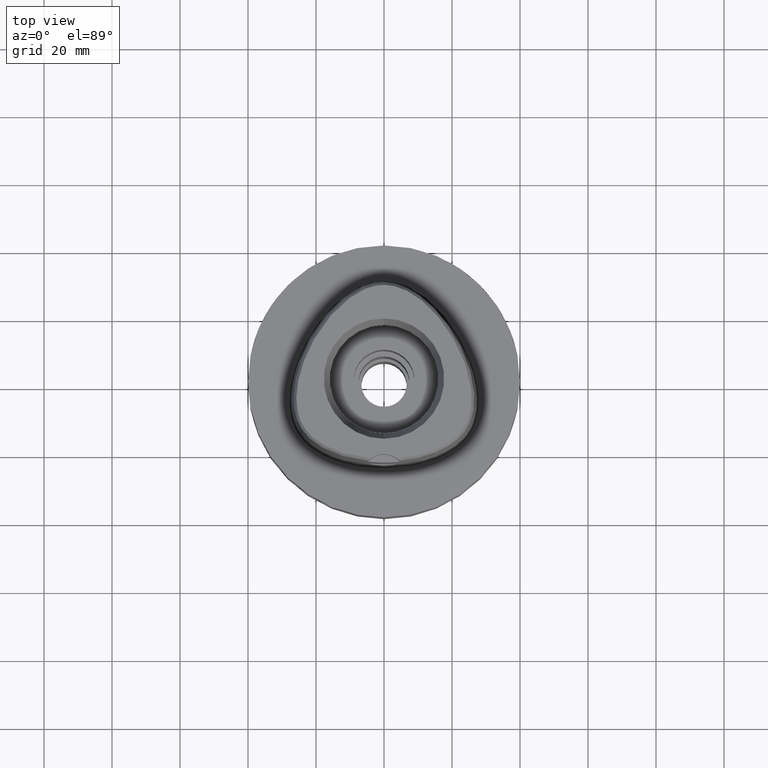
[diagram: clean part render]
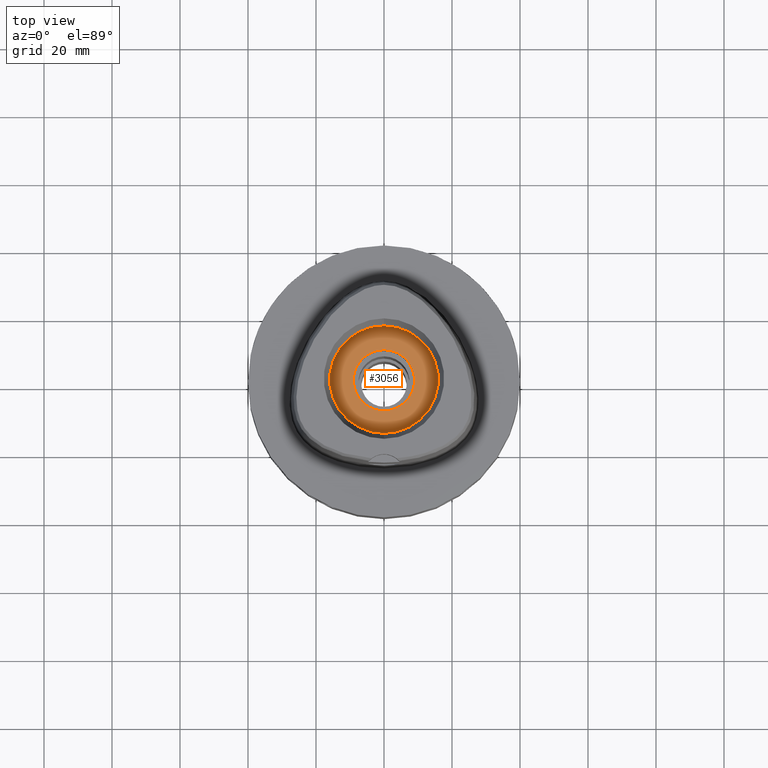
[diagram: same view with one face highlighted and labeled with its STEP entity id]
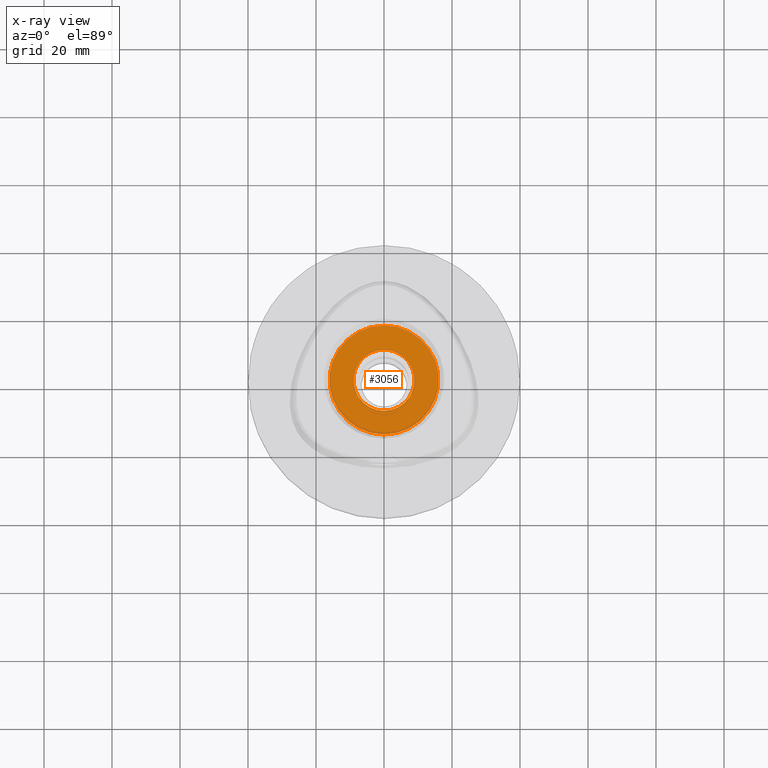
[diagram: x-ray of the same camera — body ghosted, the highlighted face saturated]
A machine part, top view. The second image highlights one B-rep face of the part: STEP entity #3056.
The next image is the same camera in x-ray: the body ghosted, the highlighted face saturated — about 0% of this face is hidden behind the body in this view.
In plain terms, the highlighted planar face has unit normal (0, 0, -1).
Its self-contained STEP definition (entity closure, byte-faithful):
#119 = CARTESIAN_POINT ( 'NONE',  ( 0.0000000000000000000, 9.000000000000000000, 20.00000000000000000 ) ) ;
#170 = FACE_BOUND ( 'NONE', #788, .T. ) ;
#448 = EDGE_CURVE ( 'NONE', #1340, #599, #2713, .T. ) ;
#470 = DIRECTION ( 'NONE',  ( 0.0000000000000000000, -1.000000000000000000, 0.0000000000000000000 ) ) ;
#509 = DIRECTION ( 'NONE',  ( 0.0000000000000000000, -1.000000000000000000, 0.0000000000000000000 ) ) ;
#531 = DIRECTION ( 'NONE',  ( 0.0000000000000000000, 1.000000000000000000, 0.0000000000000000000 ) ) ;
#599 = VERTEX_POINT ( 'NONE', #4890 ) ;
#788 = EDGE_LOOP ( 'NONE', ( #3852, #4651 ) ) ;
#1191 = CARTESIAN_POINT ( 'NONE',  ( 0.0000000000000000000, 0.0000000000000000000, 20.00000000000000000 ) ) ;
#1192 = DIRECTION ( 'NONE',  ( 0.0000000000000000000, 1.000000000000000000, 0.0000000000000000000 ) ) ;
#1274 = FACE_OUTER_BOUND ( 'NONE', #3387, .T. ) ;
#1340 = VERTEX_POINT ( 'NONE', #4104 ) ;
#1351 = PLANE ( 'NONE',  #4888 ) ;
#1535 = AXIS2_PLACEMENT_3D ( 'NONE', #5132, #3200, #1192 ) ;
#2033 = AXIS2_PLACEMENT_3D ( 'NONE', #1191, #4867, #531 ) ;
#2157 = DIRECTION ( 'NONE',  ( 0.0000000000000000000, -1.000000000000000000, 0.0000000000000000000 ) ) ;
#2175 = DIRECTION ( 'NONE',  ( 0.0000000000000000000, 0.0000000000000000000, -1.000000000000000000 ) ) ;
#2229 = EDGE_CURVE ( 'NONE', #4280, #3269, #4299, .T. ) ;
#2301 = CIRCLE ( 'NONE', #1535, 16.00000000000000000 ) ;
#2478 = AXIS2_PLACEMENT_3D ( 'NONE', #4099, #2175, #509 ) ;
#2713 = CIRCLE ( 'NONE', #2478, 16.00000000000000000 ) ;
#3056 = ADVANCED_FACE ( 'NONE', ( #1274, #170 ), #1351, .F. ) ;
#3200 = DIRECTION ( 'NONE',  ( 0.0000000000000000000, 0.0000000000000000000, -1.000000000000000000 ) ) ;
#3269 = VERTEX_POINT ( 'NONE', #3722 ) ;
#3309 = CARTESIAN_POINT ( 'NONE',  ( 0.0000000000000000000, 0.0000000000000000000, 20.00000000000000000 ) ) ;
#3387 = EDGE_LOOP ( 'NONE', ( #4642, #4814 ) ) ;
#3722 = CARTESIAN_POINT ( 'NONE',  ( 0.0000000000000000000, -9.000000000000000000, 20.00000000000000000 ) ) ;
#3793 = CIRCLE ( 'NONE', #5135, 9.000000000000000000 ) ;
#3804 = EDGE_CURVE ( 'NONE', #3269, #4280, #3793, .T. ) ;
#3852 = ORIENTED_EDGE ( 'NONE', *, *, #3804, .F. ) ;
#4099 = CARTESIAN_POINT ( 'NONE',  ( 0.0000000000000000000, 0.0000000000000000000, 20.00000000000000000 ) ) ;
#4104 = CARTESIAN_POINT ( 'NONE',  ( 0.0000000000000000000, -16.00000000000000000, 20.00000000000000000 ) ) ;
#4130 = CARTESIAN_POINT ( 'NONE',  ( 0.0000000000000000000, 0.0000000000000000000, 20.00000000000000000 ) ) ;
#4280 = VERTEX_POINT ( 'NONE', #119 ) ;
#4299 = CIRCLE ( 'NONE', #2033, 9.000000000000000000 ) ;
#4493 = DIRECTION ( 'NONE',  ( 0.0000000000000000000, 0.0000000000000000000, 1.000000000000000000 ) ) ;
#4642 = ORIENTED_EDGE ( 'NONE', *, *, #448, .F. ) ;
#4651 = ORIENTED_EDGE ( 'NONE', *, *, #2229, .F. ) ;
#4814 = ORIENTED_EDGE ( 'NONE', *, *, #4878, .F. ) ;
#4867 = DIRECTION ( 'NONE',  ( 0.0000000000000000000, 0.0000000000000000000, 1.000000000000000000 ) ) ;
#4878 = EDGE_CURVE ( 'NONE', #599, #1340, #2301, .T. ) ;
#4888 = AXIS2_PLACEMENT_3D ( 'NONE', #3309, #4902, #2157 ) ;
#4890 = CARTESIAN_POINT ( 'NONE',  ( 0.0000000000000000000, 16.00000000000000000, 20.00000000000000000 ) ) ;
#4902 = DIRECTION ( 'NONE',  ( 0.0000000000000000000, 0.0000000000000000000, -1.000000000000000000 ) ) ;
#5132 = CARTESIAN_POINT ( 'NONE',  ( 0.0000000000000000000, 0.0000000000000000000, 20.00000000000000000 ) ) ;
#5135 = AXIS2_PLACEMENT_3D ( 'NONE', #4130, #4493, #470 ) ;